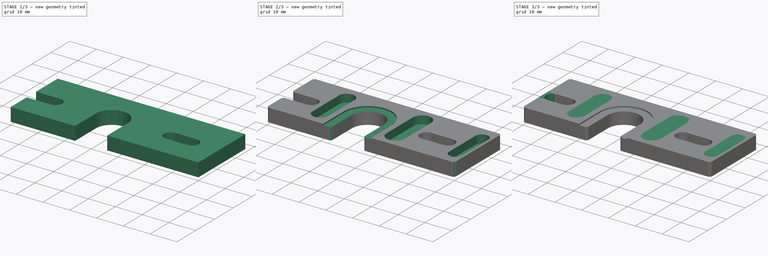
[diagram: build sequence overview — one tinted view per stage of 3, left to right]
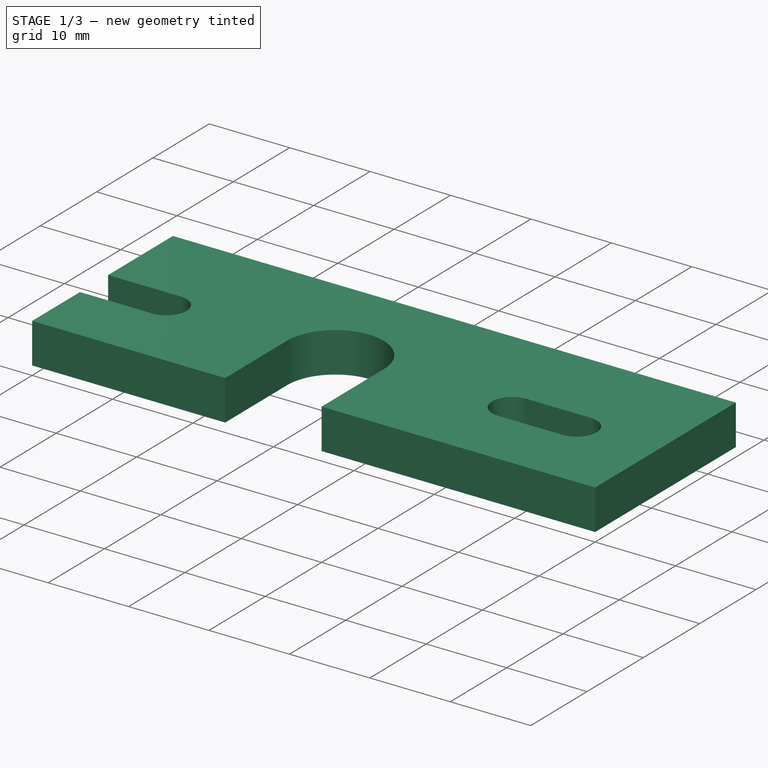
[diagram: stage 1 of 3 — iso view after this stage's code; geometry added in this stage tinted green]
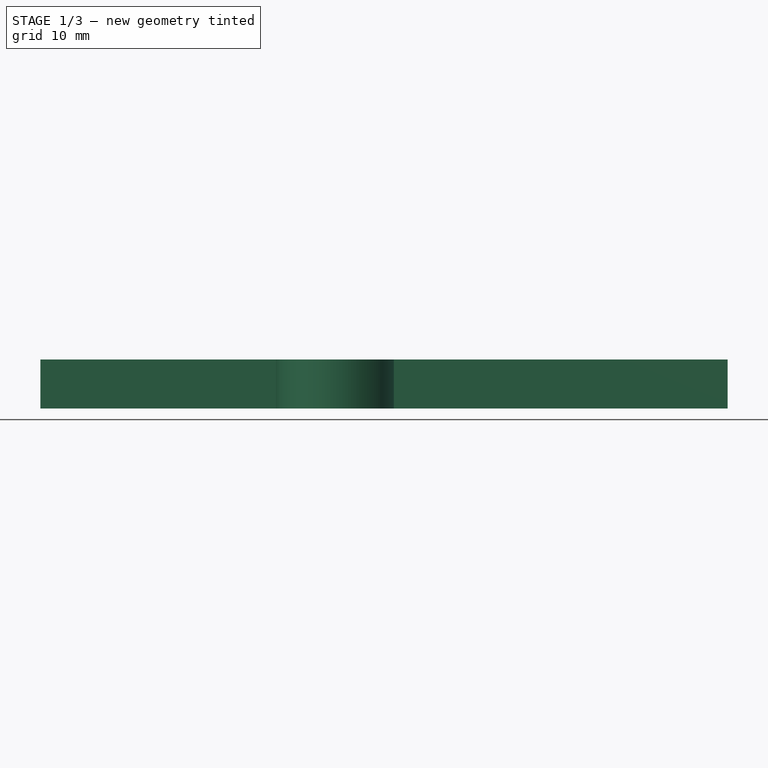
[diagram: stage 1 of 3 — front view after this stage's code; geometry added in this stage tinted green]
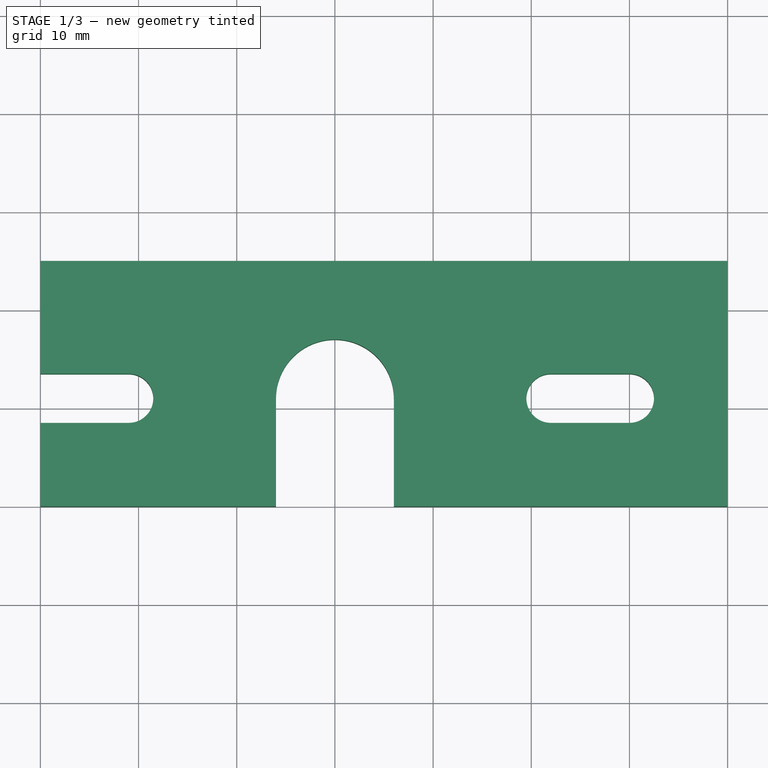
[diagram: stage 1 of 3 — top view after this stage's code; geometry added in this stage tinted green]
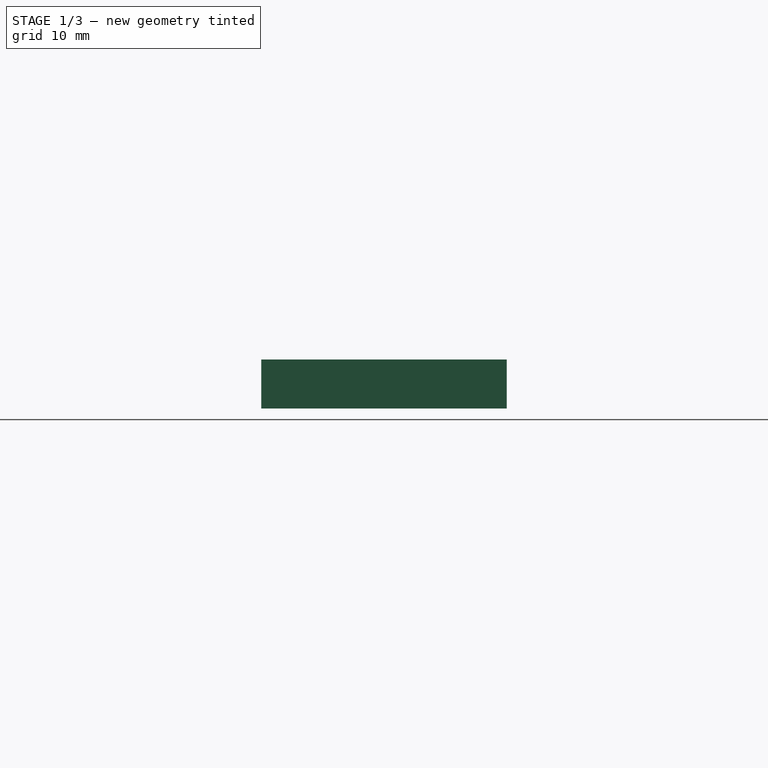
[diagram: stage 1 of 3 — right view after this stage's code; geometry added in this stage tinted green]
FCSTD DOCUMENT  (FreeCAD 0.16R6698 (Git))
Label: MOARstruder-mount-plate_PP-MP0156_revA
License: All rights reserved
LicenseURL: http://en.wikipedia.org/wiki/All_rights_reserved
objects: Drawing::FeatureView×34, Sketcher::SketchObject×5, Drawing::FeatureViewPart×4, PartDesign::Pocket×3, PartDesign::Pad×2, PartDesign::Fillet×2, Part::Feature×1, Drawing::FeaturePage×1
note: 18 computed .brp shape members not serialized (recipe doc carries the construction recipe); baked Part::Feature solids carry a one-line shape summary decoded from their .brp

FEATURE [Sketcher::SketchObject] Sketch
  sketch-geometry (4):
    g0: LineSegment StartX=0 StartY=0 StartZ=0 EndX=70 EndY=0 EndZ=0
    g1: LineSegment StartX=70 StartY=0 StartZ=0 EndX=70 EndY=25 EndZ=0
    g2: LineSegment StartX=70 StartY=25 StartZ=0 EndX=0 EndY=25 EndZ=0
    g3: LineSegment StartX=0 StartY=25 StartZ=0 EndX=0 EndY=0 EndZ=0
  constraints (11):
    c: Coincident(g0,g1)
    c: Coincident(g1,g2)
    c: Coincident(g2,g3)
    c: Coincident(g3,g0)
    c: Horizontal(g0)
    c: Horizontal(g2)
    c: Vertical(g1)
    c: Vertical(g3)
    c: Coincident(g0,g-1)
    c: DistanceY(g3) = -25
    c: DistanceX(g2) = -70
FEATURE [PartDesign::Pad] Pad
  Length = 5
  Length2 = 100
  Sketch = -> Sketch
  Type = 0
FEATURE [Sketcher::SketchObject] Sketch001
  Placement = pos=(0,0,5) rot=(0,0,1;0rad)
  Support = -> Pad [Face6]
  sketch-geometry (12):
    g0: ArcOfCircle CenterX=30 CenterY=0 CenterZ=0 NormalX=0 NormalY=0 NormalZ=1 Radius=6 StartAngle=3.14159 EndAngle=6.28319
    g1: ArcOfCircle CenterX=30 CenterY=11 CenterZ=0 NormalX=0 NormalY=0 NormalZ=1 Radius=6 StartAngle=0 EndAngle=3.14159
    g2: LineSegment StartX=36 StartY=2e-12 StartZ=0 EndX=36 EndY=11 EndZ=0
    g3: LineSegment StartX=24 StartY=-1e-12 StartZ=0 EndX=24 EndY=11 EndZ=0
    g4: ArcOfCircle CenterX=0 CenterY=11 CenterZ=0 NormalX=0 NormalY=0 NormalZ=1 Radius=2.5 StartAngle=1.5708 EndAngle=4.71239
    g5: ArcOfCircle CenterX=9 CenterY=11 CenterZ=0 NormalX=0 NormalY=0 NormalZ=1 Radius=2.5 StartAngle=4.71239 EndAngle=7.85398
    g6: LineSegment StartX=0 StartY=8.5 StartZ=0 EndX=9 EndY=8.5 EndZ=0
    g7: LineSegment StartX=0 StartY=13.5 StartZ=0 EndX=9 EndY=13.5 EndZ=0
    g8: ArcOfCircle CenterX=52 CenterY=11 CenterZ=0 NormalX=0 NormalY=0 NormalZ=1 Radius=2.5 StartAngle=1.5708 EndAngle=4.71239
    g9: ArcOfCircle CenterX=60 CenterY=11 CenterZ=0 NormalX=0 NormalY=0 NormalZ=1 Radius=2.5 StartAngle=4.71239 EndAngle=7.85398
    g10: LineSegment StartX=52 StartY=8.5 StartZ=0 EndX=60 EndY=8.5 EndZ=0
    g11: LineSegment StartX=52 StartY=13.5 StartZ=0 EndX=60 EndY=13.5 EndZ=0
  constraints (30):
    c: Tangent(g0,g3) = 1.5708
    c: Tangent(g0,g2) = -1.5708
    c: Tangent(g2,g1) = -1.5708
    c: Tangent(g3,g1) = 1.5708
    c: Vertical(g2)
    c: Equal(g0,g1)
    c: PointOnObject(g0,g-1)
    c: Radius(g1) = 6
    c: DistanceY(g1,g0) = -11
    c: DistanceX(g-1,g0) = 24
    c: Tangent(g4,g7) = 1.5708
    c: Tangent(g4,g6) = -1.5708
    c: Tangent(g6,g5) = -1.5708
    c: Tangent(g7,g5) = 1.5708
    c: Horizontal(g6)
    c: Equal(g4,g5)
    c: PointOnObject(g4,g-2)
    c: Tangent(g8,g11) = 1.5708
    c: Tangent(g8,g10) = -1.5708
    c: Tangent(g10,g9) = -1.5708
    c: Tangent(g11,g9) = 1.5708
    c: Horizontal(g10)
    c: Equal(g8,g9)
    c: Equal(g5,g8)
    c: Radius(g9) = 2.5
    c: DistanceY(g-1,g4) = 8.5
    c: PointOnObject(g8,g6)
    c: DistanceX(g7) = 9
    c: DistanceX(g-1,g8) = 52
    c: DistanceX(g8,g9) = 8
FEATURE [PartDesign::Pocket] Pocket
  Length = 5
  Sketch = -> Sketch001
  Type = 1
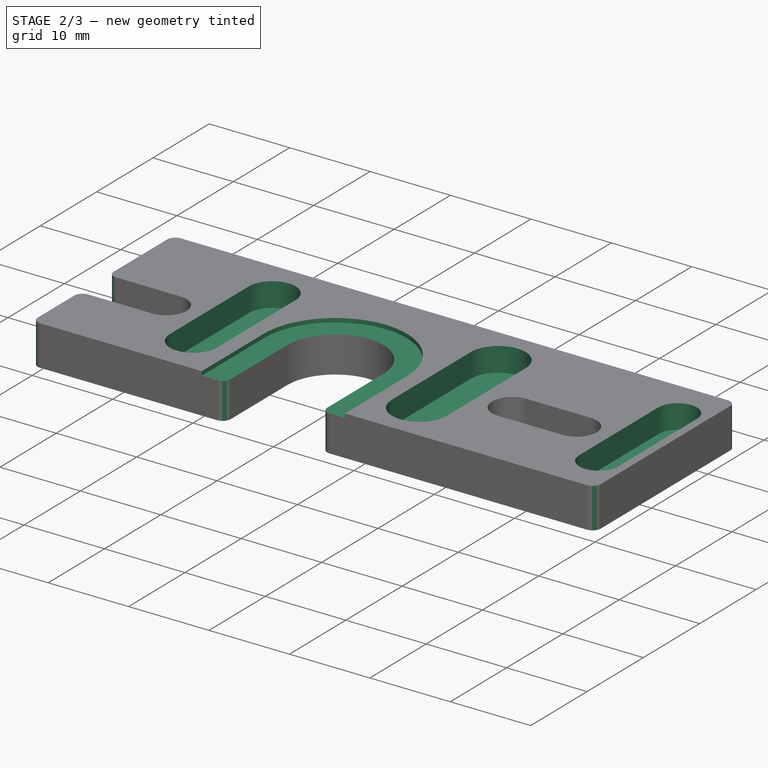
[diagram: stage 2 of 3 — iso view after this stage's code; geometry added in this stage tinted green]
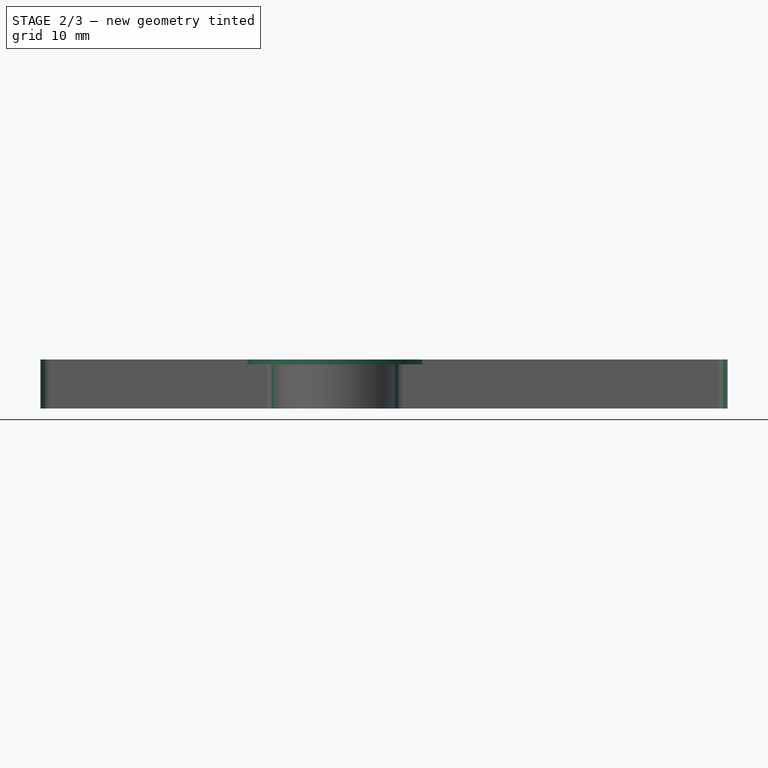
[diagram: stage 2 of 3 — front view after this stage's code; geometry added in this stage tinted green]
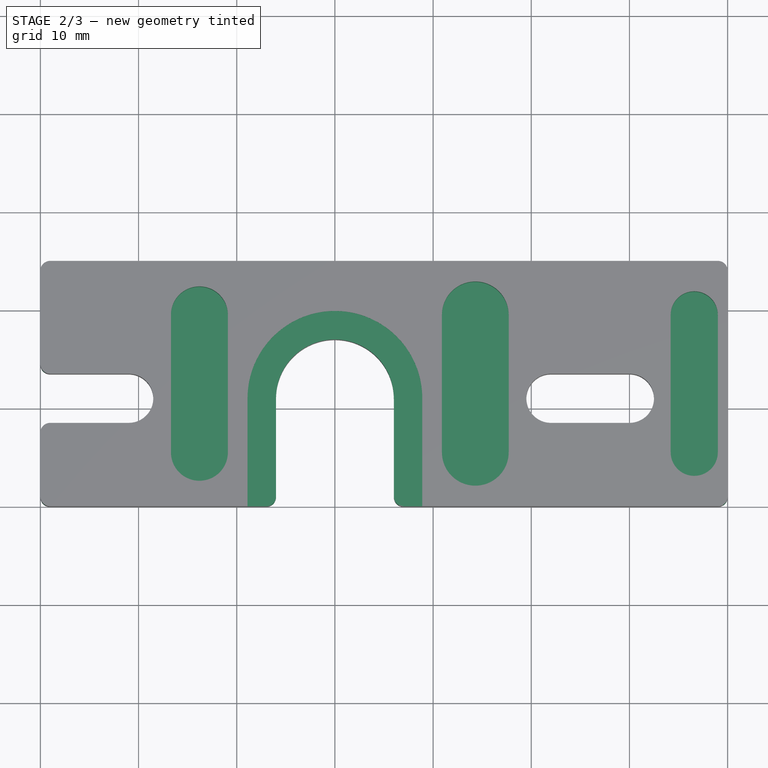
[diagram: stage 2 of 3 — top view after this stage's code; geometry added in this stage tinted green]
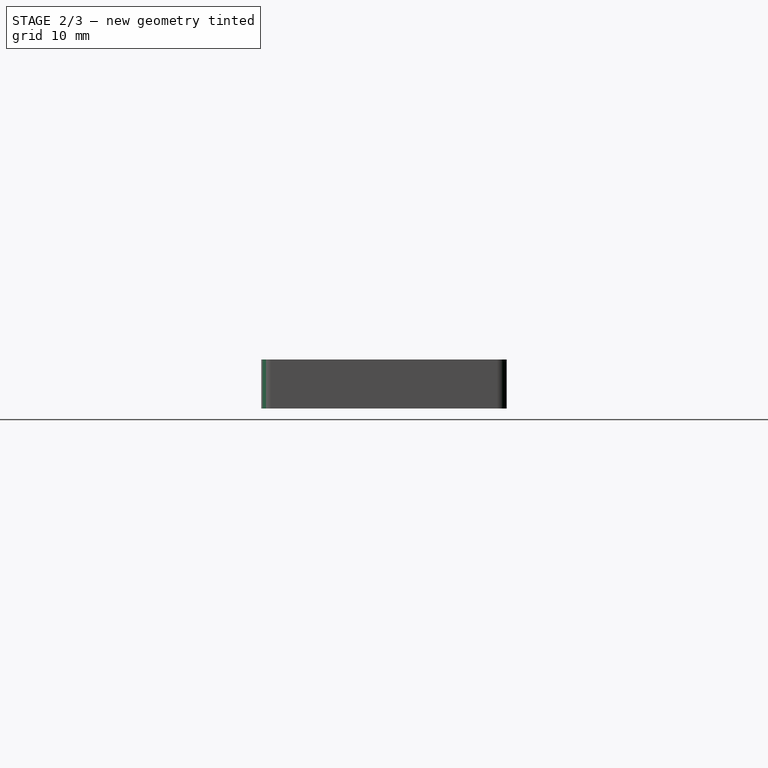
[diagram: stage 2 of 3 — right view after this stage's code; geometry added in this stage tinted green]
FEATURE [Sketcher::SketchObject] Sketch002
  ExternalGeometry = -> [Pocket]
  Placement = pos=(0,0,5) rot=(0,0,1;0rad)
  Support = -> Pocket [Face4]
  sketch-geometry (4):
    g0: ArcOfCircle CenterX=30 CenterY=0 CenterZ=0 NormalX=0 NormalY=0 NormalZ=1 Radius=8.9 StartAngle=3.14159 EndAngle=6.28319
    g1: ArcOfCircle CenterX=30 CenterY=11 CenterZ=0 NormalX=0 NormalY=0 NormalZ=1 Radius=8.9 StartAngle=0 EndAngle=3.14159
    g2: LineSegment StartX=38.9 StartY=1e-12 StartZ=0 EndX=38.9 EndY=11 EndZ=0
    g3: LineSegment StartX=21.1 StartY=1e-12 StartZ=0 EndX=21.1 EndY=11 EndZ=0
  constraints (9):
    c: Tangent(g0,g3) = 1.5708
    c: Tangent(g0,g2) = -1.5708
    c: Tangent(g2,g1) = -1.5708
    c: Tangent(g3,g1) = 1.5708
    c: Vertical(g2)
    c: Equal(g0,g1)
    c: PointOnObject(g0,g-1)
    c: Coincident(g1,g-3)
    c: Radius(g0) = 8.9
FEATURE [PartDesign::Pocket] Pocket001
  Length = 0.5
  Sketch = -> Sketch002
  Type = 0
FEATURE [Sketcher::SketchObject] Sketch003
  ExternalGeometry = -> [Pocket001]
  Placement = pos=(0,0,5) rot=(0,0,1;0rad)
  Support = -> Pocket001 [Face6]
  sketch-geometry (14):
    g0: ArcOfCircle CenterX=16.2 CenterY=5.5 CenterZ=0 NormalX=0 NormalY=0 NormalZ=1 Radius=2.9 StartAngle=3.14159 EndAngle=6.28319
    g1: ArcOfCircle CenterX=16.2 CenterY=19.5 CenterZ=0 NormalX=0 NormalY=0 NormalZ=1 Radius=2.9 StartAngle=0 EndAngle=3.14159
    g2: LineSegment StartX=19.1 StartY=5.5 StartZ=0 EndX=19.1 EndY=19.5 EndZ=0
    g3: LineSegment StartX=13.3 StartY=5.5 StartZ=0 EndX=13.3 EndY=19.5 EndZ=0
    g4: ArcOfCircle CenterX=44.3 CenterY=5.5 CenterZ=0 NormalX=0 NormalY=0 NormalZ=1 Radius=3.4 StartAngle=3.14159 EndAngle=6.28319
    g5: ArcOfCircle CenterX=44.3 CenterY=19.5 CenterZ=0 NormalX=0 NormalY=0 NormalZ=1 Radius=3.4 StartAngle=0 EndAngle=3.14159
    g6: LineSegment StartX=47.7 StartY=5.5 StartZ=0 EndX=47.7 EndY=19.5 EndZ=0
    g7: LineSegment StartX=40.9 StartY=5.5 StartZ=0 EndX=40.9 EndY=19.5 EndZ=0
    g8: ArcOfCircle CenterX=66.6 CenterY=5.5 CenterZ=0 NormalX=0 NormalY=0 NormalZ=1 Radius=2.4 StartAngle=3.14159 EndAngle=6.28319
    g9: ArcOfCircle CenterX=66.6 CenterY=19.5 CenterZ=0 NormalX=0 NormalY=0 NormalZ=1 Radius=2.4 StartAngle=0 EndAngle=3.14159
    g10: LineSegment StartX=69 StartY=5.5 StartZ=0 EndX=69 EndY=19.5 EndZ=0
    g11: LineSegment StartX=64.2 StartY=5.5 StartZ=0 EndX=64.2 EndY=19.5 EndZ=0
    g12: LineSegment [constr] StartX=64.2 StartY=5.5 StartZ=0 EndX=47.7 EndY=5.5 EndZ=0
    g13: LineSegment [constr] StartX=19.1 StartY=5.5 StartZ=0 EndX=40.9 EndY=5.5 EndZ=0
  constraints (34):
    c: Tangent(g0,g3) = 1.5708
    c: Tangent(g0,g2) = -1.5708
    c: Tangent(g2,g1) = -1.5708
    c: Tangent(g3,g1) = 1.5708
    c: Vertical(g2)
    c: Equal(g0,g1)
    c: Tangent(g4,g7) = 1.5708
    c: Tangent(g4,g6) = -1.5708
    c: Tangent(g6,g5) = -1.5708
    c: Tangent(g7,g5) = 1.5708
    c: Vertical(g6)
    c: Equal(g4,g5)
    c: Tangent(g8,g11) = 1.5708
    c: Tangent(g8,g10) = -1.5708
    c: Tangent(g10,g9) = -1.5708
    c: Tangent(g11,g9) = 1.5708
    c: Vertical(g10)
    c: Equal(g8,g9)
    c: Radius(g1) = 2.9
    c: Radius(g5) = 3.4
    c: Radius(g9) = 2.4
    c: DistanceX(g9,g-3) = 1
    c: DistanceX(g4,g-4) = -2
    c: DistanceX(g0,g-5) = 2
    c: DistanceY(g4,g-3) = -5.5
    c: DistanceY(g5,g-3) = 5.5
    c: Coincident(g12,g8)
    c: Coincident(g12,g4)
    c: Coincident(g13,g0)
    c: Coincident(g13,g4)
    c: Horizontal(g13)
    c: Horizontal(g12)
    c: Equal(g2,g7)
    c: Equal(g7,g11)
FEATURE [PartDesign::Pocket] Pocket002
  Length = 3
  Sketch = -> Sketch003
  Type = 0
FEATURE [PartDesign::Fillet] Fillet
  Base = -> Pocket002 [Edge64,Edge65,Edge58,Edge6,Edge2,Edge60,Edge61,Edge63]
  Radius = 1
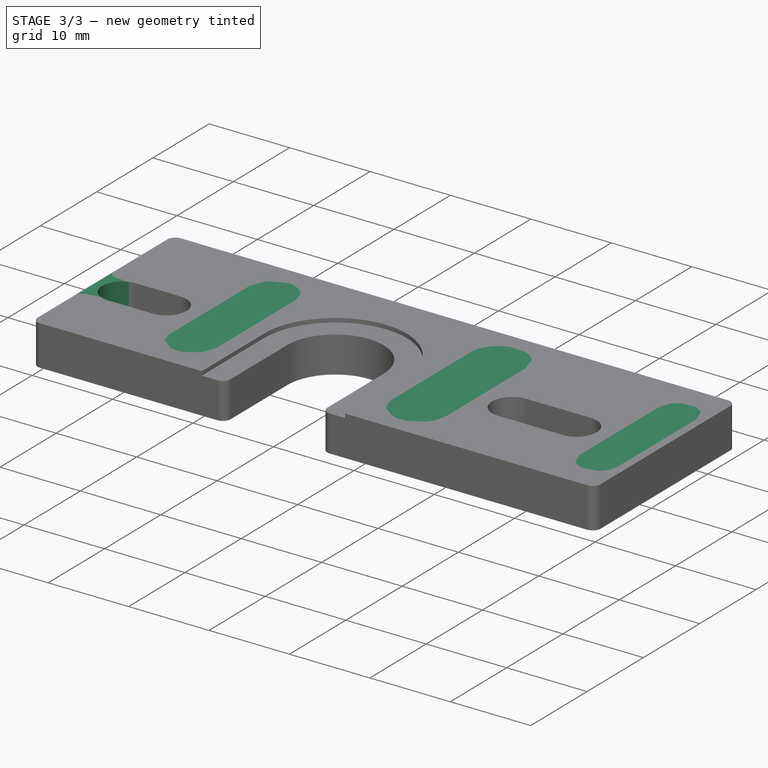
[diagram: stage 3 of 3 — iso view after this stage's code; geometry added in this stage tinted green]
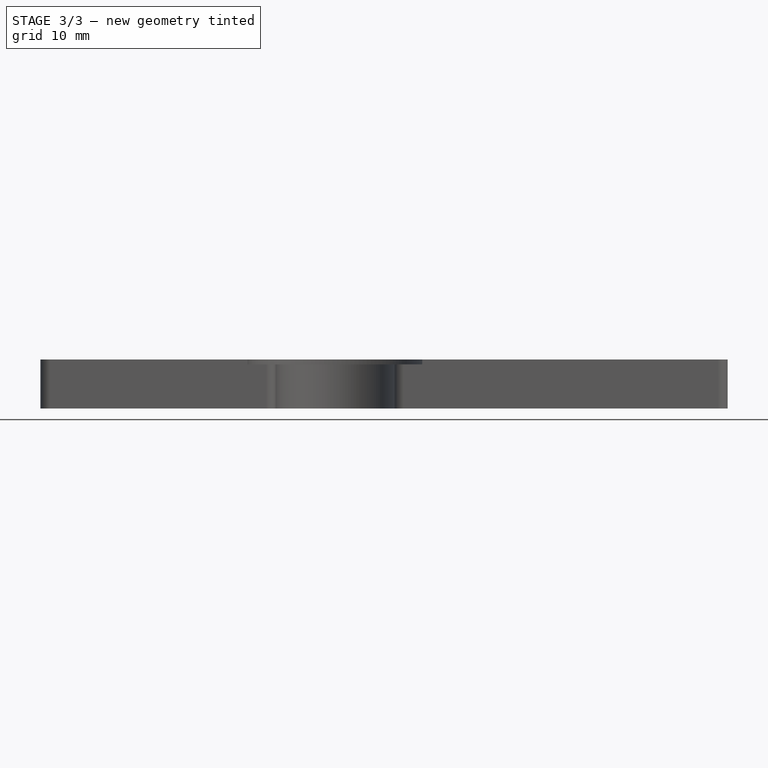
[diagram: stage 3 of 3 — front view after this stage's code; geometry added in this stage tinted green]
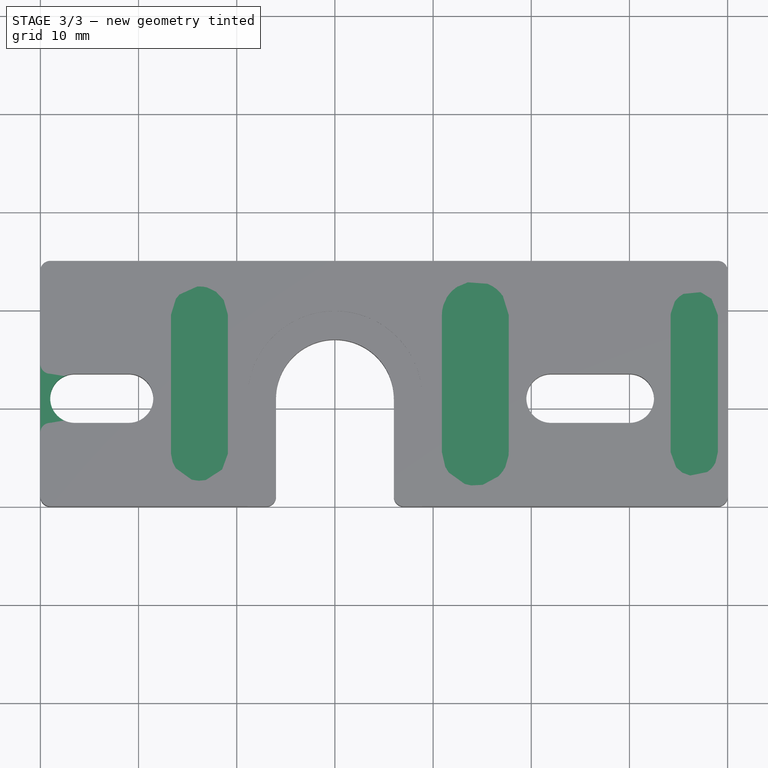
[diagram: stage 3 of 3 — top view after this stage's code; geometry added in this stage tinted green]
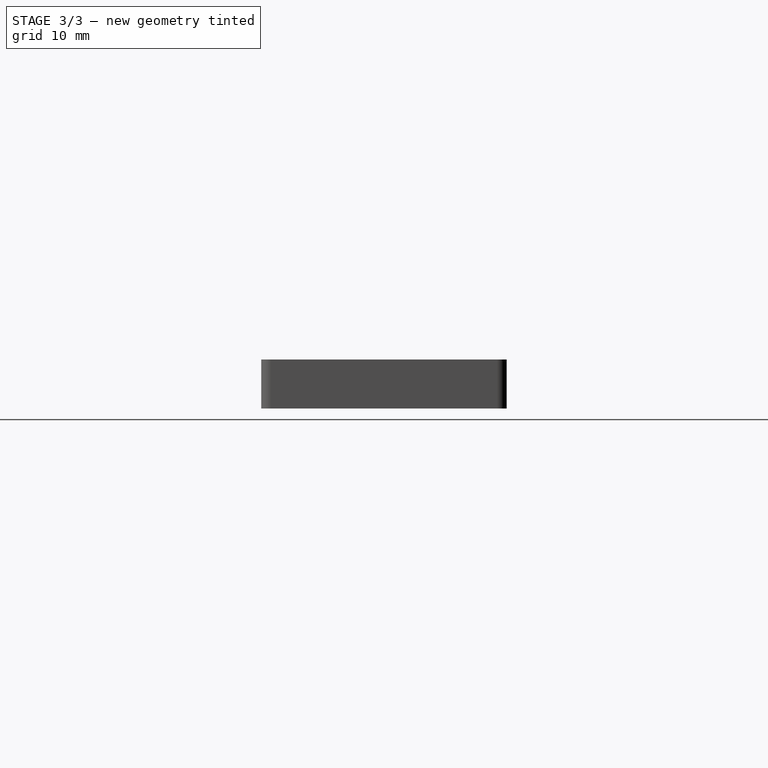
[diagram: stage 3 of 3 — right view after this stage's code; geometry added in this stage tinted green]
FEATURE [Drawing::FeatureView] dim002
  Rotation = 0
  ViewResult = <g> \n  <line x1="110.109250" y1="113.250000" x2="167.818739" y2="113.250000" style="stroke:rgb(0,0,255);stroke-width:0.20" />\n<line x1="156.851500" y1="120.000000" x2="167.818739" y2="120.000000" style="stroke:rgb(0,0,255);stroke-width:0.20" />\n<line x1="166.818739" y1="113.250000" x2="166.818739" y2="120.000000" style="stroke:rgb(0,0,255);stroke-width:0.20" /> \n  <polygon points="166.818739,120.000000 166.068739,123.000000 166.818739,123.000000 167.568739,123.000000" style="fill:rgb(0,0,255);stroke:rgb(0,0,255);stroke-width:0" /><polygon points="166.818739,113.250000 167.568739,110.250000 166.818739,110.250000 166.068739,110.250000" style="fill:rgb(0,0,255);stroke:rgb(0,0,255);stroke-width:0" /> \n  <text x="167.763209" y="104.476350" font-family="Verdana" font-size="3.6" fill="rgb(0,0,0)" text-anchor="middle" transform="rotate(-90.000000 167.763209,104.476350)" >4.50</text> </g>
  Visible = true
  X = 0
  Y = 0
FEATURE [Drawing::FeatureView] dim003
  Rotation = 0
  ViewResult = <g> \n  <line x1="200.000000" y1="82.000000" x2="200.000000" y2="91.553309" style="stroke:rgb(0,0,255);stroke-width:0.20" />\n<line x1="207.500000" y1="82.000000" x2="207.500000" y2="91.553309" style="stroke:rgb(0,0,255);stroke-width:0.20" />\n<line x1="200.000000" y1="90.553309" x2="207.500000" y2="90.553309" style="stroke:rgb(0,0,255);stroke-width:0.20" /> \n  <polygon points="207.500000,90.553309 210.500000,91.303309 210.500000,90.553309 210.500000,89.803309" style="fill:rgb(0,0,255);stroke:rgb(0,0,255);stroke-width:0" /><polygon points="200.000000,90.553309 197.000000,89.803309 197.000000,90.553309 197.000000,91.303309" style="fill:rgb(0,0,255);stroke:rgb(0,0,255);stroke-width:0" /> \n  <text x="213.890774" y="91.736564" font-family="Verdana" font-size="3.6" fill="rgb(0,0,0)" text-anchor="middle"  >5.0</text> </g>
  Visible = true
  X = 0
  Y = 0
FEATURE [Drawing::FeatureView] dim004
  Rotation = 0
  ViewResult = <g> <line x1="209.500000" y1="80.000000" x2="218.537502" y2="80.000000" style="stroke:rgb(0,0,255);stroke-width:0.20" />\n<line x1="209.500000" y1="42.500000" x2="218.537502" y2="42.500000" style="stroke:rgb(0,0,255);stroke-width:0.20" />\n<line x1="217.537502" y1="80.000000" x2="217.537502" y2="42.500000" style="stroke:rgb(0,0,255);stroke-width:0.20" />\n<polygon points="217.537502,80.000000 218.287502,77.000000 217.537502,77.000000 216.787502,77.000000" style="fill:rgb(0,0,255);stroke:rgb(0,0,255);stroke-width:0" />\n<polygon points="217.537502,42.500000 216.787502,45.500000 217.537502,45.500000 218.287502,45.500000" style="fill:rgb(0,0,255);stroke:rgb(0,0,255);stroke-width:0" />\n<text x="215.537502" y="61.250000" font-family="Verdana" font-size="3.6" fill="rgb(0,0,0)" text-anchor="middle" transform="rotate(-90.000000 215.537502,61.250000)" >25.0</text> </g> 
  Visible = true
  X = 0
  Y = 0
FEATURE [Drawing::FeatureView] centerLines001
  Rotation = 0
  ViewResult = <g transform="scale(1.500000,1.500000)" stroke="rgb(0,0,255)"  stroke-width="0.200000" > <path d="M 42.333333,42.333333 L 42.333333,43.666667 "/>\n<path d="M 42.333333,42.333333 L 43.666667,42.333333 "/>\n<path d="M 42.333333,42.333333 L 42.333333,41.000000 "/>\n<path d="M 42.333333,42.333333 L 41.000000,42.333333 "/> </g> 
  Visible = true
  X = 0
  Y = 0
FEATURE [Drawing::FeatureView] centerLines004
  Rotation = 0
  ViewResult = <g transform="scale(1.500000,1.500000)" stroke="rgb(0,0,255)"  stroke-width="0.200000" > <path d="M 63.333333,42.333333 L 63.333333,41.000000 "/>\n<path d="M 63.333333,42.333333 L 62.000000,42.333333 "/>\n<path d="M 63.333333,42.333333 L 63.333333,43.666667 "/>\n<path d="M 63.333333,42.333333 L 64.666667,42.333333 "/> </g> 
  Visible = true
  X = 0
  Y = 0
FEATURE [Drawing::FeatureView] centerLines007
  Rotation = 0
  ViewResult = <g transform="scale(1.500000,1.500000)" stroke="rgb(0,0,255)"  stroke-width="0.200000" > <path d="M 85.333333,42.333333 L 85.333333,41.000000 "/>\n<path d="M 85.333333,42.333333 L 86.666667,42.333333 "/>\n<path d="M 85.333333,42.333333 L 85.333333,43.666667 "/>\n<path d="M 85.333333,42.333333 L 84.000000,42.333333 "/> </g> 
  Visible = true
  X = 0
  Y = 0
FEATURE [Drawing::FeatureView] centerLines008
  Rotation = 0
  ViewResult = <g transform="scale(1.500000,1.500000)" stroke="rgb(0,0,255)"  stroke-width="0.200000" > <path d="M 93.333333,42.333333 L 93.333333,43.666667 "/>\n<path d="M 93.333333,42.333333 L 94.666667,42.333333 "/>\n<path d="M 93.333333,42.333333 L 93.333333,41.000000 "/>\n<path d="M 93.333333,42.333333 L 92.000000,42.333333 "/> </g> 
  Visible = true
  X = 0
  Y = 0
FEATURE [Drawing::FeatureView] dim005
  Rotation = 0
  ViewResult = <g> <line x1="49.500000" y1="80.000000" x2="40.694417" y2="80.000000" style="stroke:rgb(0,0,255);stroke-width:0.20" />\n<line x1="59.499970" y1="63.500000" x2="40.694417" y2="63.500000" style="stroke:rgb(0,0,255);stroke-width:0.20" />\n<line x1="41.694417" y1="80.000000" x2="41.694417" y2="63.500000" style="stroke:rgb(0,0,255);stroke-width:0.20" />\n<polygon points="41.694417,80.000000 42.444417,77.000000 41.694417,77.000000 40.944417,77.000000" style="fill:rgb(0,0,255);stroke:rgb(0,0,255);stroke-width:0" />\n<polygon points="41.694417,63.500000 40.944417,66.500000 41.694417,66.500000 42.444417,66.500000" style="fill:rgb(0,0,255);stroke:rgb(0,0,255);stroke-width:0" />\n<text x="43.018049" y="88.625814" font-family="Verdana" font-size="3.6" fill="rgb(0,0,0)" text-anchor="middle" transform="rotate(-90.000000 43.018049,88.625814)" >5X 11.00</text> </g> 
  Visible = true
  X = 0
  Y = 0
FEATURE [Drawing::FeatureView] dim008
  Rotation = 0
  ViewResult = <g> <line x1="50.000000" y1="80.500000" x2="50.000000" y2="94.575048" style="stroke:rgb(0,0,255);stroke-width:0.20" />\n<line x1="95.000000" y1="67.500010" x2="95.000000" y2="94.575048" style="stroke:rgb(0,0,255);stroke-width:0.20" />\n<line x1="50.000000" y1="93.575048" x2="95.000000" y2="93.575048" style="stroke:rgb(0,0,255);stroke-width:0.20" />\n<polygon points="50.000000,93.575048 53.000000,94.325048 53.000000,93.575048 53.000000,92.825048" style="fill:rgb(0,0,255);stroke:rgb(0,0,255);stroke-width:0" />\n<polygon points="95.000000,93.575048 92.000000,92.825048 92.000000,93.575048 92.000000,94.325048" style="fill:rgb(0,0,255);stroke:rgb(0,0,255);stroke-width:0" />\n<text x="72.500000" y="91.575048" font-family="Verdana" font-size="3.6" fill="rgb(0,0,0)" text-anchor="middle"  >30.0</text> </g> 
  Visible = true
  X = 0
  Y = 0
FEATURE [Drawing::FeatureView] dim009
  Rotation = 0
  ViewResult = <g> <line x1="50.000000" y1="80.500000" x2="50.000000" y2="102.948461" style="stroke:rgb(0,0,255);stroke-width:0.20" />\n<line x1="128.000000" y1="67.500010" x2="128.000000" y2="102.948461" style="stroke:rgb(0,0,255);stroke-width:0.20" />\n<line x1="50.000000" y1="101.948461" x2="128.000000" y2="101.948461" style="stroke:rgb(0,0,255);stroke-width:0.20" />\n<polygon points="50.000000,101.948461 53.000000,102.698461 53.000000,101.948461 53.000000,101.198461" style="fill:rgb(0,0,255);stroke:rgb(0,0,255);stroke-width:0" />\n<polygon points="128.000000,101.948461 125.000000,101.198461 125.000000,101.948461 125.000000,102.698461" style="fill:rgb(0,0,255);stroke:rgb(0,0,255);stroke-width:0" />\n<text x="89.000000" y="99.948461" font-family="Verdana" font-size="3.6" fill="rgb(0,0,0)" text-anchor="middle"  >52.0</text> </g> 
  Visible = true
  X = 0
  Y = 0
FEATURE [Drawing::FeatureView] dim010
  Rotation = 0
  ViewResult = <g> \n  <line x1="128.000000" y1="67.500000" x2="128.000000" y2="102.859555" style="stroke:rgb(0,0,255);stroke-width:0.20" />\n<line x1="140.000000" y1="67.500000" x2="140.000000" y2="102.859555" style="stroke:rgb(0,0,255);stroke-width:0.20" />\n<line x1="128.000000" y1="101.859555" x2="140.000000" y2="101.859555" style="stroke:rgb(0,0,255);stroke-width:0.20" /> \n  <polygon points="140.000000,101.859555 137.000000,101.109555 137.000000,101.859555 137.000000,102.609555" style="fill:rgb(0,0,255);stroke:rgb(0,0,255);stroke-width:0" /><polygon points="128.000000,101.859555 131.000000,102.609555 131.000000,101.859555 131.000000,101.109555" style="fill:rgb(0,0,255);stroke:rgb(0,0,255);stroke-width:0" /> \n  <text x="143.519220" y="102.895337" font-family="Verdana" font-size="3.6" fill="rgb(0,0,0)" text-anchor="middle"  >8.0</text> </g>
  Visible = true
  X = 0
  Y = 0
FEATURE [Drawing::FeatureView] dim019
  Rotation = 0
  ViewResult = <g> \n  <line x1="86.000000" y1="80.500000" x2="86.000000" y2="89.841624" style="stroke:rgb(0,0,255);stroke-width:0.20" />\n<line x1="104.000000" y1="80.500000" x2="104.000000" y2="89.841624" style="stroke:rgb(0,0,255);stroke-width:0.20" />\n<line x1="86.000000" y1="88.841624" x2="104.000000" y2="88.841624" style="stroke:rgb(0,0,255);stroke-width:0.20" /> \n  <polygon points="104.000000,88.841624 101.000000,88.091624 101.000000,88.841624 101.000000,89.591624" style="fill:rgb(0,0,255);stroke:rgb(0,0,255);stroke-width:0" /><polygon points="86.000000,88.841624 89.000000,89.591624 89.000000,88.841624 89.000000,88.091624" style="fill:rgb(0,0,255);stroke:rgb(0,0,255);stroke-width:0" /> \n  <text x="108.507669" y="89.981382" font-family="Verdana" font-size="3.6" fill="rgb(0,0,0)" text-anchor="middle"  >12.0</text> </g>
  Visible = true
  X = 0
  Y = 0
FEATURE [Drawing::FeatureView] dim021
  Rotation = 0
  ViewResult = <g> <line x1="50.000000" y1="122.000000" x2="50.000000" y2="129.408446" style="stroke:rgb(0,0,255);stroke-width:0.20" />\n<line x1="155.000000" y1="122.000000" x2="155.000000" y2="129.408446" style="stroke:rgb(0,0,255);stroke-width:0.20" />\n<line x1="50.000000" y1="128.408446" x2="155.000000" y2="128.408446" style="stroke:rgb(0,0,255);stroke-width:0.20" />\n<polygon points="50.000000,128.408446 53.000000,129.158446 53.000000,128.408446 53.000000,127.658446" style="fill:rgb(0,0,255);stroke:rgb(0,0,255);stroke-width:0" />\n<polygon points="155.000000,128.408446 152.000000,127.658446 152.000000,128.408446 152.000000,129.158446" style="fill:rgb(0,0,255);stroke:rgb(0,0,255);stroke-width:0" />\n<text x="102.500000" y="127.408446" font-family="Verdana" font-size="3.6" fill="rgb(0,0,0)" text-anchor="middle"  >70.0</text> </g> 
  Visible = true
  X = 0
  Y = 0
FEATURE [Drawing::FeatureView] dim022
  Rotation = 0
  ViewResult = <g> \n  <line x1="49.500000" y1="67.250000" x2="36.478936" y2="67.250000" style="stroke:rgb(0,0,255);stroke-width:0.20" />\n<line x1="49.500000" y1="59.750000" x2="36.478936" y2="59.750000" style="stroke:rgb(0,0,255);stroke-width:0.20" />\n<line x1="37.478936" y1="67.250000" x2="37.478936" y2="59.750000" style="stroke:rgb(0,0,255);stroke-width:0.20" /> \n  <polygon points="37.478936,59.750000 38.228936,56.750000 37.478936,56.750000 36.728936,56.750000" style="fill:rgb(0,0,255);stroke:rgb(0,0,255);stroke-width:0" /><polygon points="37.478936,67.250000 36.728936,70.250000 37.478936,70.250000 38.228936,70.250000" style="fill:rgb(0,0,255);stroke:rgb(0,0,255);stroke-width:0" /> \n  <text x="38.845730" y="50.211703" font-family="Verdana" font-size="3.6" fill="rgb(0,0,0)" text-anchor="middle" transform="rotate(-90.000000 38.845730,50.211703)" >2X 5.0</text> </g>
  Visible = true
  X = 0
  Y = 0
FEATURE [Drawing::FeatureView] dim023
  Rotation = 0
  ViewResult = <g> \n  <line x1="81.650000" y1="61.500000" x2="81.650000" y2="35.543761" style="stroke:rgb(0,0,255);stroke-width:0.20" />\n<line x1="108.350000" y1="61.500000" x2="108.350000" y2="35.543761" style="stroke:rgb(0,0,255);stroke-width:0.20" />\n<line x1="81.650000" y1="36.543761" x2="108.350000" y2="36.543761" style="stroke:rgb(0,0,255);stroke-width:0.20" /> \n  <polygon points="108.350000,36.543761 105.350000,35.793761 105.350000,36.543761 105.350000,37.293761" style="fill:rgb(0,0,255);stroke:rgb(0,0,255);stroke-width:0" /><polygon points="81.650000,36.543761 84.650000,37.293761 84.650000,36.543761 84.650000,35.793761" style="fill:rgb(0,0,255);stroke:rgb(0,0,255);stroke-width:0" /> \n  <text x="95.000000" y="35.543761" font-family="Verdana" font-size="3.6" fill="rgb(0,0,0)" text-anchor="middle"  >17.8</text> </g>
  Visible = true
  X = 0
  Y = 0
FEATURE [Drawing::FeatureView] dim024
  Rotation = 0
  ViewResult = <g>  <circle cx ="153.500000" cy ="78.500000" r="0.500000" stroke="none" fill="rgb(0,0,255)" /> \n<line x1="159.639166" y1="87.462840" x2="153.500000" y2="78.500000" style="stroke:rgb(0,0,255);stroke-width:0.20" />\n<polygon points="154.347656,79.737530 155.424202,82.636417 156.042967,82.212590 156.661732,81.788762" style="fill:rgb(0,0,255);stroke:rgb(0,0,255);stroke-width:0" />\n<line x1="159.639166" y1="87.462840" x2="162.936257" y2="87.462840" style="stroke:rgb(0,0,255);stroke-width:0.20" />\n<text x="167.939988" y="86.533288" font-family="Verdana" font-size="3.6" fill="rgb(0,0,0)" text-anchor="middle"  >6X R1.0</text> </g>
  Visible = true
  X = 0
  Y = 0
FEATURE [Drawing::FeatureView] dimText001
  Rotation = 0
  ViewResult = <g> <text x="188.142613" y="136.057294" font-family="inherit" font-size="3.6" fill="rgb(0,0,0)" text-anchor="inherit" transform="rotate(0.000000 188.142613,136.057294)" >Notes:</text> </g>
  Visible = true
  X = 0
  Y = 0
FEATURE [Drawing::FeatureView] dimText002
  Rotation = 0
  ViewResult = <g> <text x="187.802186" y="140.142417" font-family="inherit" font-size="3.6" fill="rgb(0,0,0)" text-anchor="inherit"  >1.  Material: 6061-T6 Aluminum</text> </g>
  Visible = true
  X = 0
  Y = 0
FEATURE [Drawing::FeatureView] dimText003
  Rotation = 0
  ViewResult = <g> <text x="187.461759" y="144.454491" font-family="inherit" font-size="3.6" fill="rgb(0,0,0)" text-anchor="inherit" transform="rotate(0.000000 187.461759,144.454491)" >2.  Parts must be RoHS compliant.</text> </g>
  Visible = true
  X = 0
  Y = 0
FEATURE [Drawing::FeatureView] dimText004
  Rotation = 0
  ViewResult = <g> <text x="187.461759" y="148.880041" font-family="inherit" font-size="3.6" fill="rgb(0,0,0)" text-anchor="inherit" transform="rotate(0.000000 187.461759,148.880041)" >3.  Remove all burrs and shavings.</text> </g>
  Visible = true
  X = 0
  Y = 0
FEATURE [Drawing::FeatureView] dimText005
  Rotation = 0
  ViewResult = <g > <text x="119.392786" y="89.981382" font-family="Verdana" font-size="2.88" fill="rgb(0,0,0)" text-anchor="end"  >-0.0</text> \n <text x="119.392786" y="87.101382" font-family="Verdana" font-size="2.88" fill="rgb(0,0,0)" text-anchor="end"  >+0.1</text> </g> 
  Visible = true
  X = 0
  Y = 0
FEATURE [Drawing::FeatureView] dimText006
  Rotation = 0
  ViewResult = <g > <text x="166.908777" y="92.514309" font-family="Verdana" font-size="2.88" fill="rgb(0,0,0)" text-anchor="end" transform="rotate(-90.000000 166.908777,92.514309)" >-0.10</text> \n <text x="164.109777" y="92.440651" font-family="Verdana" font-size="2.88" fill="rgb(0,0,0)" text-anchor="end" transform="rotate(-90.000000 164.109777,92.440651)" >+0.00</text> </g> 
  Visible = true
  X = 0
  Y = 0
FEATURE [Sketcher::SketchObject] Sketch004
  ExternalGeometry = -> [Fillet]
  Placement = pos=(0,0,5) rot=(0,0,1;0rad)
  Support = -> Fillet [Face5]
  sketch-geometry (16):
    g0: ArcOfCircle CenterX=16.2 CenterY=5.5 CenterZ=0 NormalX=0 NormalY=0 NormalZ=1 Radius=4 StartAngle=3.14159 EndAngle=6.28319
    g1: ArcOfCircle CenterX=16.2 CenterY=19.5 CenterZ=0 NormalX=0 NormalY=0 NormalZ=1 Radius=4 StartAngle=0 EndAngle=3.14159
    g2: LineSegment StartX=20.2 StartY=5.5 StartZ=0 EndX=20.2 EndY=19.5 EndZ=0
    g3: LineSegment StartX=12.2 StartY=5.5 StartZ=0 EndX=12.2 EndY=19.5 EndZ=0
    g4: ArcOfCircle CenterX=44.3 CenterY=5.5 CenterZ=0 NormalX=0 NormalY=0 NormalZ=1 Radius=4 StartAngle=3.14159 EndAngle=6.28319
    g5: ArcOfCircle CenterX=44.3 CenterY=19.5 CenterZ=0 NormalX=0 NormalY=0 NormalZ=1 Radius=4 StartAngle=0 EndAngle=3.14159
    g6: LineSegment StartX=48.3 StartY=5.5 StartZ=0 EndX=48.3 EndY=19.5 EndZ=0
    g7: LineSegment StartX=40.3 StartY=5.5 StartZ=0 EndX=40.3 EndY=19.5 EndZ=0
    g8: ArcOfCircle CenterX=66.6 CenterY=5.5 CenterZ=0 NormalX=0 NormalY=0 NormalZ=1 Radius=3 StartAngle=3.14159 EndAngle=6.28319
    g9: ArcOfCircle CenterX=66.6 CenterY=19.5 CenterZ=0 NormalX=0 NormalY=0 NormalZ=1 Radius=3 StartAngle=0 EndAngle=3.14159
    g10: LineSegment StartX=69.6 StartY=5.5 StartZ=0 EndX=69.6 EndY=19.5 EndZ=0
    g11: LineSegment StartX=63.6 StartY=5.5 StartZ=0 EndX=63.6 EndY=19.5 EndZ=0
    g12: LineSegment StartX=0 StartY=14.5 StartZ=0 EndX=1 EndY=14.5 EndZ=0
    g13: LineSegment StartX=1 StartY=14.5 StartZ=0 EndX=1 EndY=7.5 EndZ=0
    g14: LineSegment StartX=1 StartY=7.5 StartZ=0 EndX=0 EndY=7.5 EndZ=0
    g15: LineSegment StartX=0 StartY=7.5 StartZ=0 EndX=0 EndY=14.5 EndZ=0
  constraints (37):
    c: Tangent(g0,g3) = 1.5708
    c: Tangent(g0,g2) = -1.5708
    c: Tangent(g2,g1) = -1.5708
    c: Tangent(g3,g1) = 1.5708
    c: Vertical(g2)
    c: Equal(g0,g1)
    c: Coincident(g0,g-10)
    c: Tangent(g4,g7) = 1.5708
    c: Tangent(g4,g6) = -1.5708
    c: Tangent(g6,g5) = -1.5708
    c: Tangent(g7,g5) = 1.5708
    c: Vertical(g6)
    c: Equal(g4,g5)
    c: Coincident(g4,g-9)
    c: Tangent(g8,g11) = 1.5708
    c: Tangent(g8,g10) = -1.5708
    c: Tangent(g10,g9) = -1.5708
    c: Tangent(g11,g9) = 1.5708
    c: Vertical(g10)
    c: Equal(g8,g9)
    c: Coincident(g8,g-13)
    c: Radius(g9) = 3
    c: Radius(g5) = 4
    c: Radius(g1) = 4
    c: Coincident(g-11,g1)
    c: Coincident(g5,g-8)
    c: Coincident(g9,g-12)
    c: Coincident(g12,g13)
    c: Coincident(g13,g14)
    c: Coincident(g14,g15)
    c: Coincident(g15,g12)
    c: Horizontal(g12)
    c: Horizontal(g14)
    c: Vertical(g13)
    c: Vertical(g15)
    c: Coincident(g12,g-6)
    c: Coincident(g13,g-5)
FEATURE [PartDesign::Pad] Pad001
  Length = 5
  Length2 = 100
  Reversed = true
  Sketch = -> Sketch004
  Type = 0
FEATURE [PartDesign::Fillet] Fillet001
  Base = -> Pad001 [Edge107,Edge104]
  Radius = 2.499
FEATURE [Part::Feature] Fillet001001  label="Fillet002"
  shape: bbox 70 x 25 x 5 mm, 30 faces (baked)
FEATURE [Drawing::FeatureViewPart] Ortho  label="Front"
  Direction = (1,0,0)
  HiddenWidth = 0.15
  LineWidth = 0.35
  Rotation = 0
  Scale = 1.5
  ShowHiddenLines = false
  ShowSmoothLines = true
  Source = -> Fillet001001
  Tolerance = 0.05
  ViewResult = <g id="Front"\n   transform="rotate(0,200,42.5) translate(200,42.5) scale(1.5,1.5)"\n  >\n<g   stroke="rgb(0, 0, 0)"\n   stroke-width="0.233333"\n   stroke-linecap="butt"\n   stroke-linejoin="miter"\n   fill="none"\n   transform="scale(1,-1)"\n  >\n<path id= "1" d=" M 0 -25 L 5 -25 " />\n<path d="M0,-24 L0,-24.112  L0,-24.2225  L0,-24.3303  L0,-24.4339  L0,-24.532  L0,-24.6235  L0,-24.7071  L0,-24.7818  L0,-24.8467  L0,-24.901  L0,-24.9439  L0,-24.9749  L0,-24.9937  L0,-25 " /><path d="M5,-24 L5,-24.112  L5,-24.2225  L5,-24.3303  L5,-24.4339  L5,-24.532  L5,-24.6235  L5,-24.7071  L5,-24.7818  L5,-24.8467  L5,-24.901  L5,-24.9439  L5,-24.9749  L5,-24.9937  L5,-25 " /><path id= "4" d=" M 0 -1 L 0 -24 " />\n<path id= "5" d=" M 5 -1 L 5 -24 " />\n<path d="M0,2.22045e-16 L0,-0.00628779  L0,-0.0250721  L0,-0.0561167  L0,-0.0990311  L0,-0.153276  L0,-0.218169  L0,-0.292893  L0,-0.37651  L0,-0.467968  L0,-0.566116  L0,-0.669721  L0,-0.777479  L0,-0.888036  L0,-1 " /><path id= "7" d=" M 0 2.22045e-16 L 5 2.22045e-16 " />\n<path d="M5,2.22045e-16 L5,-0.00628779  L5,-0.0250721  L5,-0.0561167  L5,-0.0990311  L5,-0.153276  L5,-0.218169  L5,-0.292893  L5,-0.37651  L5,-0.467968  L5,-0.566116  L5,-0.669721  L5,-0.777479  L5,-0.888036  L5,-1 " /></g>\n<g   stroke="rgb(0, 0, 0)"\n   stroke-width="0.233333"\n   stroke-linecap="butt"\n   stroke-linejoin="miter"\n   fill="none"\n   transform="scale(1,-1)"\n  >\n<path id= "1" d=" M 0 -24 L 5 -24 " />\n<path id= "2" d=" M 0 -1 L 5 -1 " />\n</g>\n</g>
  Visible = true
  X = 200
  Y = 42.5
FEATURE [Drawing::FeatureViewPart] Ortho001  label="Iso"
  Direction = (0.57735,-0.57735,0.57735)
  HiddenWidth = 0.15
  LineWidth = 0.35
  Rotation = 60
  Scale = 1.5
  ShowHiddenLines = false
  ShowSmoothLines = true
  Source = -> Fillet001001
  Tolerance = 0.05
  ViewResult = <blob: 4902 chars omitted>
  Visible = true
  X = 20
  Y = 160
FEATURE [Drawing::FeatureViewPart] Ortho002  label="Top"
  Direction = (0,0,1)
  HiddenWidth = 0.15
  LineWidth = 0.35
  Rotation = 0
  Scale = 1.5
  ShowHiddenLines = true
  ShowSmoothLines = true
  Source = -> Fillet001001
  Tolerance = 0.05
  ViewResult = <blob: 2848 chars omitted>
  Visible = true
  X = 50
  Y = 80
FEATURE [Drawing::FeatureViewPart] Ortho004  label="Left"
  Direction = (0,-1,0)
  HiddenWidth = 0.15
  LineWidth = 0.35
  Rotation = 90
  Scale = 1.5
  ShowHiddenLines = true
  ShowSmoothLines = true
  Source = -> Fillet001001
  Tolerance = 0.05
  ViewResult = <blob: 9111 chars omitted>
  Visible = true
  X = 50
  Y = 120
FEATURE [Drawing::FeatureView] centerLines002
  Rotation = 0
  ViewResult = <g transform="scale(1.500000,1.500000)" stroke="rgb(0,0,255)"  stroke-width="0.200000" > <path d="M 36.832333,42.332333 L 36.832333,40.999000 "/>\n<path d="M 36.832333,42.332333 L 35.600914,42.332333 "/>\n<path d="M 36.832333,42.332333 L 36.832333,43.665667 "/>\n<path d="M 36.832333,42.332333 L 37.552922,42.332333 "/> </g> 
  Visible = true
  X = 0
  Y = 0
FEATURE [Drawing::FeatureView] dim001
  Rotation = 0
  ViewResult = <g> <line x1="50.000000" y1="80.500000" x2="50.000000" y2="85.494075" style="stroke:rgb(0,0,255);stroke-width:0.20" />\n<line x1="55.248500" y1="65.501534" x2="55.248500" y2="85.494075" style="stroke:rgb(0,0,255);stroke-width:0.20" />\n<line x1="50.000000" y1="84.494075" x2="55.248500" y2="84.494075" style="stroke:rgb(0,0,255);stroke-width:0.20" />\n<polygon points="50.000000,84.494075 47.000000,83.744075 47.000000,84.494075 47.000000,85.244075" style="fill:rgb(0,0,255);stroke:rgb(0,0,255);stroke-width:0" />\n<polygon points="55.248500,84.494075 58.248500,85.244075 58.248500,84.494075 58.248500,83.744075" style="fill:rgb(0,0,255);stroke:rgb(0,0,255);stroke-width:0" />\n<text x="62.449989" y="85.868735" font-family="Verdana" font-size="3.6" fill="rgb(0,0,0)" text-anchor="middle"  >3.5</text> </g> 
  Visible = true
  X = 0
  Y = 0
FEATURE [Drawing::FeatureView] dim006
  Rotation = 0
  ViewResult = <g> \n  <line x1="55.248499" y1="63.498501" x2="55.248499" y2="35.530442" style="stroke:rgb(0,0,255);stroke-width:0.20" />\n<line x1="63.500000" y1="59.500000" x2="63.500000" y2="35.530442" style="stroke:rgb(0,0,255);stroke-width:0.20" />\n<line x1="55.248499" y1="36.530442" x2="63.500000" y2="36.530442" style="stroke:rgb(0,0,255);stroke-width:0.20" /> \n  <polygon points="63.500000,36.530442 60.500000,35.780442 60.500000,36.530442 60.500000,37.280442" style="fill:rgb(0,0,255);stroke:rgb(0,0,255);stroke-width:0" /><polygon points="55.248499,36.530442 58.248499,37.280442 58.248499,36.530442 58.248499,35.780442" style="fill:rgb(0,0,255);stroke:rgb(0,0,255);stroke-width:0" /> \n  <text x="59.374249" y="35.530442" font-family="Verdana" font-size="3" fill="rgb(0,0,0)" text-anchor="middle"  >5.5</text> </g>
  Visible = true
  X = 0
  Y = 0
FEATURE [Drawing::FeatureView] dimText007
  Rotation = 0
  ViewResult = <g> <text x="160.000000" y="10.000000" font-family="inherit" font-size="4" fill="rgb(0,0,0)" text-anchor="inherit" transform="rotate(0.000000 160.000000,10.000000)" >Rev</text> </g>
  Visible = true
  X = 0
  Y = 0
FEATURE [Drawing::FeatureView] dimText008
  Rotation = 0
  ViewResult = <g> <text x="175.000000" y="10.000000" font-family="inherit" font-size="4" fill="rgb(0,0,0)" text-anchor="inherit" transform="rotate(0.000000 175.000000,10.000000)" >Date</text> </g>
  Visible = true
  X = 0
  Y = 0
FEATURE [Drawing::FeatureView] dimText009
  Rotation = 0
  ViewResult = <g> <text x="195.000000" y="10.000000" font-family="inherit" font-size="4" fill="rgb(0,0,0)" text-anchor="inherit" transform="rotate(0.000000 195.000000,10.000000)" >Description</text> </g>
  Visible = true
  X = 0
  Y = 0
FEATURE [Drawing::FeatureView] dimText010
  Rotation = 0
  ViewResult = <g> <text x="160.000000" y="20.000000" font-family="inherit" font-size="3" fill="rgb(0,0,0)" text-anchor="inherit" transform="rotate(0.000000 160.000000,20.000000)" >IR</text> </g>
  Visible = true
  X = 0
  Y = 0
FEATURE [Drawing::FeatureView] dimText011
  Rotation = 0
  ViewResult = <g> <text x="175.000000" y="20.000000" font-family="inherit" font-size="3" fill="rgb(0,0,0)" text-anchor="inherit" transform="rotate(0.000000 175.000000,20.000000)" >06.22.16</text> </g>
  Visible = true
  X = 0
  Y = 0
FEATURE [Drawing::FeatureView] dimText012
  Rotation = 0
  ViewResult = <g> <text x="195.000000" y="20.000000" font-family="inherit" font-size="3" fill="rgb(0,0,0)" text-anchor="inherit" transform="rotate(0.000000 195.000000,20.000000)" >Initial release.</text> </g>
  Visible = true
  X = 0
  Y = 0
FEATURE [Drawing::FeatureView] dimText013
  Rotation = 0
  ViewResult = <g> <text x="160.000000" y="15.000000" font-family="inherit" font-size="3" fill="rgb(0,0,0)" text-anchor="inherit" transform="rotate(0.000000 160.000000,15.000000)" >A</text> </g>
  Visible = true
  X = 0
  Y = 0
FEATURE [Drawing::FeatureView] dimText014
  Rotation = 0
  ViewResult = <g> <text x="175.000000" y="15.000000" font-family="inherit" font-size="3" fill="rgb(0,0,0)" text-anchor="inherit" transform="rotate(0.000000 175.000000,15.000000)" >10.12.16</text> </g>
  Visible = true
  X = 0
  Y = 0
FEATURE [Drawing::FeatureView] dimText015
  Rotation = 0
  ViewResult = <g> <text x="195.000000" y="15.000000" font-family="inherit" font-size="3" fill="rgb(0,0,0)" text-anchor="inherit" transform="rotate(0.000000 195.000000,15.000000)" >Name changed to match product (MOARstruder).</text> </g>
  Visible = true
  X = 0
  Y = 0
FEATURE [Drawing::FeaturePage] Page
  EditableTexts = bam | 6.22.16 | 2:1 | MOARstruder-mount-plate | A | PP-MP0156_revA | 1 of 1 | See Notes
  Group = -> [Ortho,Ortho001,Ortho002,Ortho004,dim002,dim003,dim004,centerLines001,centerLines004,centerLines007,centerLines008,dim005,dim008,dim009,dim010,dim019,dim021,dim022,dim023,dim024,dimText001,dimText002,dimText003,dimText004,dimText005,dimText006,centerLines002,dim001,dim006,dimText007,dimText008,dimText009,dimText010,dimText011,dimText012,dimText013,dimText014,dimText015]
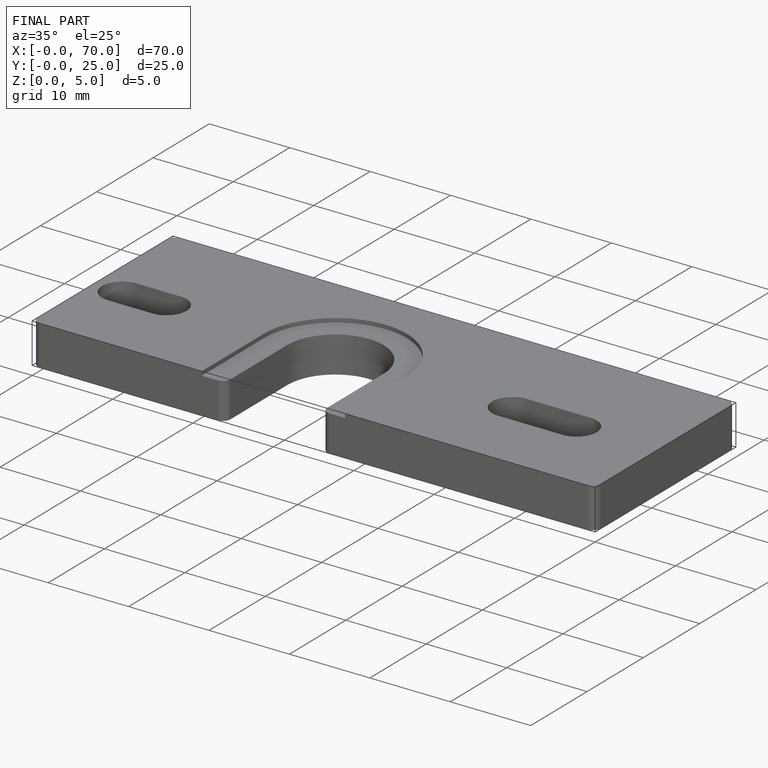
[diagram: finished part — iso view with bounding-box wireframe]
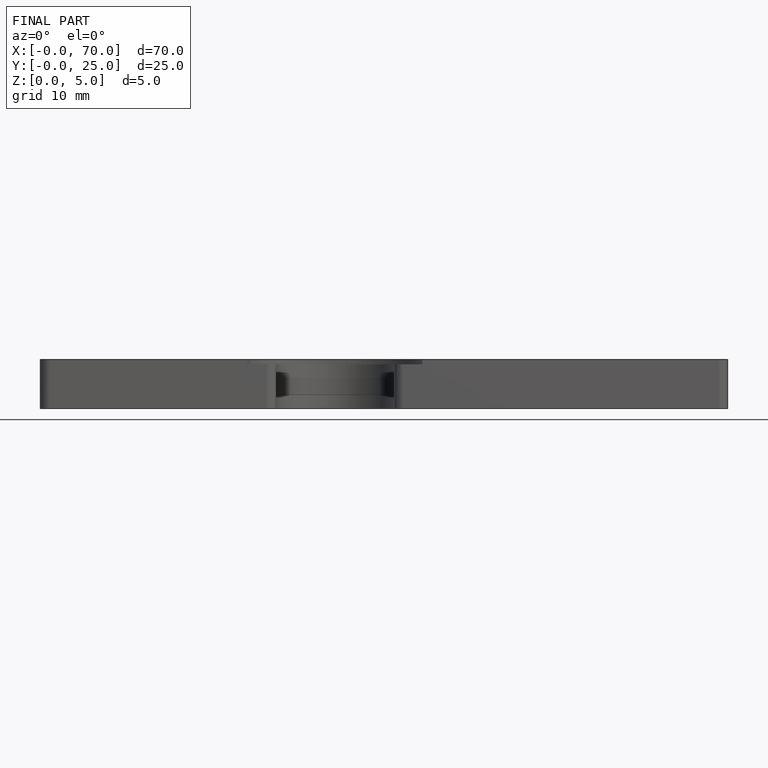
[diagram: finished part — front view with bounding-box wireframe]
